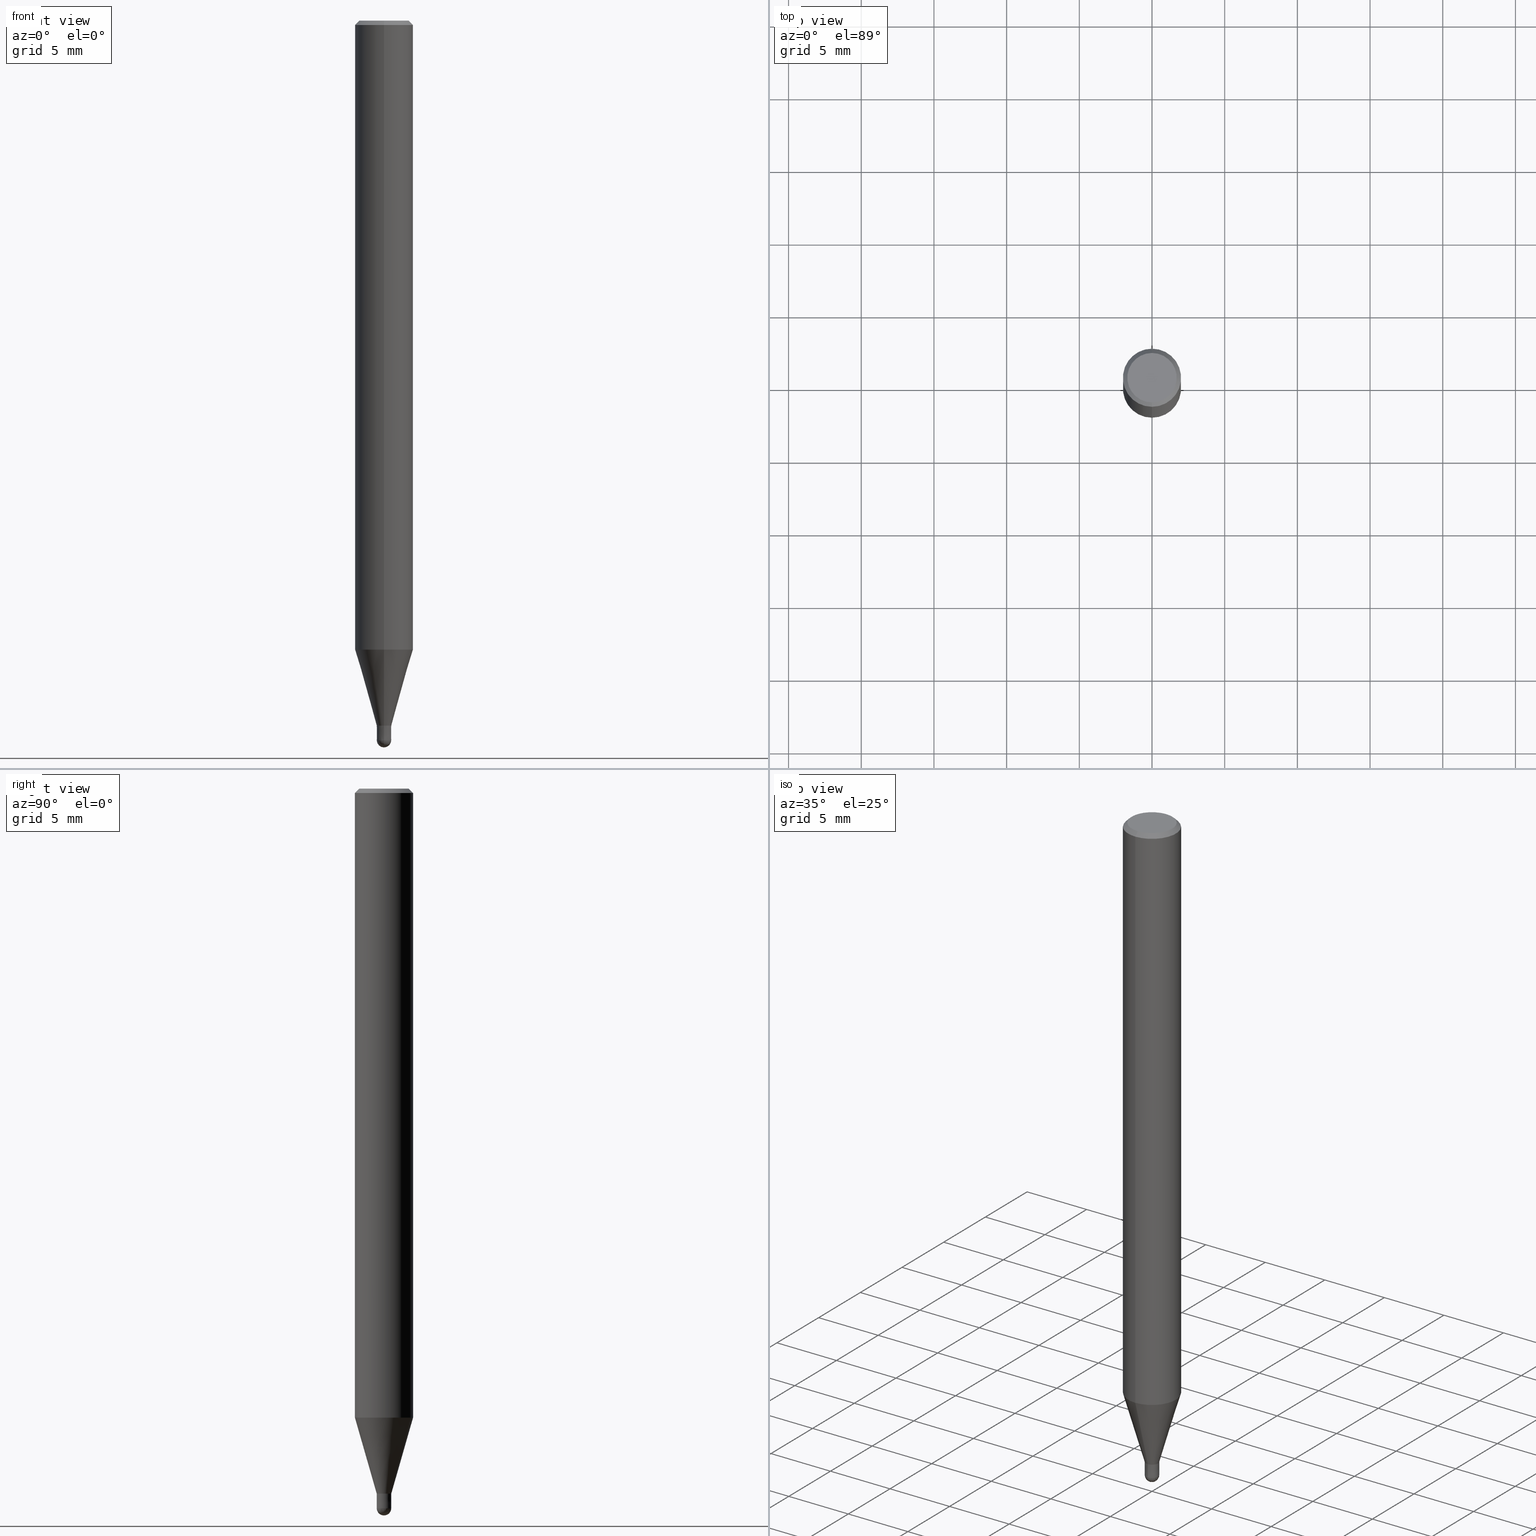
[diagram: canonical four-view strip — front | top / right | iso, engineering-drawing reading convention]
A machine part, canonical four-view strip (front | top / right | iso — engineering-drawing reading convention). The complete STEP part file that produces these views, byte-faithful:
ISO-10303-21;
HEADER;
FILE_DESCRIPTION(('no description'),'unknown implementation level');
FILE_NAME('CFB3010-0150-Huellk.stp','  ',('CIMSOURCE GmbH'),('CADClick - KiM GmbH - www.kimweb.de'),'unknown preprocess','ACIS','unknown authorization');
FILE_SCHEMA(('automotive_design'));
ENDSEC;
DATA;
#1=MECHANICAL_DESIGN_GEOMETRIC_PRESENTATION_REPRESENTATION(' ',(#14,#15,#16,#17,#18,#19,#20,#21,#22,#23,#24,#25,#26,#27,#28,#29,#30,#31,#32,#33,#34,#35,#36,#37,#38,#39,#40,#41,#42,#43,#44,#45,#46,#47,#48,#49,#50,#51,#52,#53,#54,#55,#56,#57,#58,#59,#60,#61,#62,#63,#64,#65,#66),#10);
#2=PRODUCT_DEFINITION_CONTEXT('',#67,'design');
#3=APPLICATION_PROTOCOL_DEFINITION('INTERNATIONAL STANDARD','automotive_design',1994,#67);
#4=PRODUCT_CATEGORY_RELATIONSHIP('NONE','NONE',#68,#69);
#5=SHAPE_DEFINITION_REPRESENTATION(#70,#71);
#6=PRODUCT_DEFINITION_CONTEXT('',#72,'design');
#7=APPLICATION_PROTOCOL_DEFINITION('INTERNATIONAL STANDARD','automotive_design',1994,#72);
#8=PRODUCT_CATEGORY_RELATIONSHIP('NONE','NONE',#73,#74);
#9=SHAPE_DEFINITION_REPRESENTATION(#75,#76);
#10= (GEOMETRIC_REPRESENTATION_CONTEXT(3)GLOBAL_UNCERTAINTY_ASSIGNED_CONTEXT((#79))GLOBAL_UNIT_ASSIGNED_CONTEXT((#81,#82,#83))REPRESENTATION_CONTEXT('NONE','WORKSPACE'));
#14=STYLED_ITEM('',(#85),#86);
#15=STYLED_ITEM('',(#87),#88);
#16=STYLED_ITEM('',(#89),#90);
#17=STYLED_ITEM('',(#91),#92);
#18=STYLED_ITEM('',(#93),#94);
#19=STYLED_ITEM('',(#95),#96);
#20=STYLED_ITEM('',(#97),#98);
#21=STYLED_ITEM('',(#99),#100);
#22=STYLED_ITEM('',(#101),#102);
#23=STYLED_ITEM('',(#103),#104);
#24=STYLED_ITEM('',(#105),#106);
#25=STYLED_ITEM('',(#107),#108);
#26=STYLED_ITEM('',(#109),#110);
#27=STYLED_ITEM('',(#111),#112);
#28=STYLED_ITEM('',(#113),#114);
#29=STYLED_ITEM('',(#115),#116);
#30=STYLED_ITEM('',(#117),#118);
#31=STYLED_ITEM('',(#119),#120);
#32=STYLED_ITEM('',(#121),#122);
#33=STYLED_ITEM('',(#123),#124);
#34=STYLED_ITEM('',(#125),#126);
#35=STYLED_ITEM('',(#127),#128);
#36=STYLED_ITEM('',(#129),#130);
#37=STYLED_ITEM('',(#131),#132);
#38=STYLED_ITEM('',(#133),#134);
#39=STYLED_ITEM('',(#135),#136);
#40=STYLED_ITEM('',(#137),#138);
#41=STYLED_ITEM('',(#139),#140);
#42=STYLED_ITEM('',(#141),#142);
#43=STYLED_ITEM('',(#143),#144);
#44=STYLED_ITEM('',(#145),#146);
#45=STYLED_ITEM('',(#147),#148);
#46=STYLED_ITEM('',(#149),#150);
#47=STYLED_ITEM('',(#151),#152);
#48=STYLED_ITEM('',(#153),#154);
#49=STYLED_ITEM('',(#155),#156);
#50=STYLED_ITEM('',(#157),#158);
#51=STYLED_ITEM('',(#159),#160);
#52=STYLED_ITEM('',(#161),#162);
#53=STYLED_ITEM('',(#163),#164);
#54=STYLED_ITEM('',(#165),#166);
#55=STYLED_ITEM('',(#167),#168);
#56=STYLED_ITEM('',(#169),#170);
#57=STYLED_ITEM('',(#171),#172);
#58=STYLED_ITEM('',(#173),#174);
#59=STYLED_ITEM('',(#175),#176);
#60=STYLED_ITEM('',(#177),#178);
#61=STYLED_ITEM('',(#179),#180);
#62=STYLED_ITEM('',(#181),#182);
#63=STYLED_ITEM('',(#183),#184);
#64=STYLED_ITEM('',(#185),#186);
#65=STYLED_ITEM('',(#187),#188);
#66=STYLED_ITEM('',(#189),#190);
#67=APPLICATION_CONTEXT(' ');
#68=PRODUCT_CATEGORY('part','NONE');
#69=PRODUCT_RELATED_PRODUCT_CATEGORY('detail',' ',(#191));
#70=PRODUCT_DEFINITION_SHAPE('NONE','NONE',#192);
#71=ADVANCED_BREP_SHAPE_REPRESENTATION('1',(#146,#193),#10);
#72=APPLICATION_CONTEXT(' ');
#73=PRODUCT_CATEGORY('part','NONE');
#74=PRODUCT_RELATED_PRODUCT_CATEGORY('detail',' ',(#194));
#75=PRODUCT_DEFINITION_SHAPE('NONE','NONE',#195);
#76=ADVANCED_BREP_SHAPE_REPRESENTATION('2',(#142,#196),#10);
#79=UNCERTAINTY_MEASURE_WITH_UNIT(LENGTH_MEASURE(1.0E-006),#81,'','');
#81= (CONVERSION_BASED_UNIT('MILLIMETRE',#199)LENGTH_UNIT()NAMED_UNIT(#202));
#82= (NAMED_UNIT(#204)PLANE_ANGLE_UNIT()SI_UNIT($,.RADIAN.));
#83= (NAMED_UNIT(#204)SOLID_ANGLE_UNIT()SI_UNIT($,.STERADIAN.));
#85=PRESENTATION_STYLE_ASSIGNMENT((#210));
#86=VERTEX_POINT('',#211);
#87=PRESENTATION_STYLE_ASSIGNMENT((#212));
#88=VERTEX_POINT('',#213);
#89=PRESENTATION_STYLE_ASSIGNMENT((#214));
#90=EDGE_CURVE('',#128,#176,#215,.T.);
#91=PRESENTATION_STYLE_ASSIGNMENT((#216));
#92=EDGE_CURVE('',#116,#138,#217,.T.);
#93=PRESENTATION_STYLE_ASSIGNMENT((#218));
#94=VERTEX_POINT('',#219);
#95=PRESENTATION_STYLE_ASSIGNMENT((#220));
#96=EDGE_CURVE('',#88,#130,#221,.T.);
#97=PRESENTATION_STYLE_ASSIGNMENT((#222));
#98=ADVANCED_FACE('',(#223),#224,.T.);
#99=PRESENTATION_STYLE_ASSIGNMENT((#225));
#100=ADVANCED_FACE('',(#226),#227,.T.);
#101=PRESENTATION_STYLE_ASSIGNMENT((#228));
#102=EDGE_CURVE('',#116,#86,#229,.T.);
#103=PRESENTATION_STYLE_ASSIGNMENT((#230));
#104=EDGE_CURVE('',#138,#116,#231,.T.);
#105=PRESENTATION_STYLE_ASSIGNMENT((#232));
#106=EDGE_CURVE('',#176,#94,#233,.T.);
#107=PRESENTATION_STYLE_ASSIGNMENT((#234));
#108=ADVANCED_FACE('',(#235),#236,.T.);
#109=PRESENTATION_STYLE_ASSIGNMENT((#237));
#110=EDGE_CURVE('',#88,#126,#238,.T.);
#111=PRESENTATION_STYLE_ASSIGNMENT((#239));
#112=EDGE_CURVE('',#176,#128,#240,.T.);
#113=PRESENTATION_STYLE_ASSIGNMENT((#241));
#114=EDGE_CURVE('',#144,#166,#242,.T.);
#115=PRESENTATION_STYLE_ASSIGNMENT((#243));
#116=VERTEX_POINT('',#244);
#117=PRESENTATION_STYLE_ASSIGNMENT((#245));
#118=EDGE_CURVE('',#130,#88,#246,.T.);
#119=PRESENTATION_STYLE_ASSIGNMENT((#247));
#120=EDGE_CURVE('',#166,#144,#248,.T.);
#121=PRESENTATION_STYLE_ASSIGNMENT((#249));
#122=EDGE_CURVE('',#134,#94,#250,.T.);
#123=PRESENTATION_STYLE_ASSIGNMENT((#251));
#124=ADVANCED_FACE('',(#252),#253,.T.);
#125=PRESENTATION_STYLE_ASSIGNMENT((#254));
#126=VERTEX_POINT('',#255);
#127=PRESENTATION_STYLE_ASSIGNMENT((#256));
#128=VERTEX_POINT('',#257);
#129=PRESENTATION_STYLE_ASSIGNMENT((#258));
#130=VERTEX_POINT('',#259);
#131=PRESENTATION_STYLE_ASSIGNMENT((#260));
#132=EDGE_CURVE('',#184,#130,#261,.T.);
#133=PRESENTATION_STYLE_ASSIGNMENT((#262));
#134=VERTEX_POINT('',#263);
#135=PRESENTATION_STYLE_ASSIGNMENT((#264));
#136=EDGE_CURVE('',#134,#128,#265,.T.);
#137=PRESENTATION_STYLE_ASSIGNMENT((#266));
#138=VERTEX_POINT('',#267);
#139=PRESENTATION_STYLE_ASSIGNMENT((#268));
#140=EDGE_CURVE('',#166,#190,#269,.T.);
#141=PRESENTATION_STYLE_ASSIGNMENT((#270));
#142=MANIFOLD_SOLID_BREP('2',#271);
#143=PRESENTATION_STYLE_ASSIGNMENT((#272));
#144=VERTEX_POINT('',#273);
#145=PRESENTATION_STYLE_ASSIGNMENT((#274));
#146=MANIFOLD_SOLID_BREP('1',#275);
#147=PRESENTATION_STYLE_ASSIGNMENT((#276));
#148=ADVANCED_FACE('',(#277),#278,.T.);
#149=PRESENTATION_STYLE_ASSIGNMENT((#279));
#150=ADVANCED_FACE('',(#280),#281,.T.);
#151=PRESENTATION_STYLE_ASSIGNMENT((#282));
#152=EDGE_CURVE('',#190,#138,#283,.T.);
#153=PRESENTATION_STYLE_ASSIGNMENT((#284));
#154=ADVANCED_FACE('',(#285),#286,.T.);
#155=PRESENTATION_STYLE_ASSIGNMENT((#287));
#156=ADVANCED_FACE('',(#288,#289),#290,.T.);
#157=PRESENTATION_STYLE_ASSIGNMENT((#291));
#158=ADVANCED_FACE('',(#292),#293,.T.);
#159=PRESENTATION_STYLE_ASSIGNMENT((#294));
#160=EDGE_CURVE('',#126,#184,#295,.T.);
#161=PRESENTATION_STYLE_ASSIGNMENT((#296));
#162=EDGE_CURVE('',#94,#134,#297,.T.);
#163=PRESENTATION_STYLE_ASSIGNMENT((#298));
#164=EDGE_CURVE('',#190,#86,#299,.T.);
#165=PRESENTATION_STYLE_ASSIGNMENT((#300));
#166=VERTEX_POINT('',#301);
#167=PRESENTATION_STYLE_ASSIGNMENT((#302));
#168=ADVANCED_FACE('',(#303),#304,.T.);
#169=PRESENTATION_STYLE_ASSIGNMENT((#305));
#170=EDGE_CURVE('',#86,#190,#306,.T.);
#171=PRESENTATION_STYLE_ASSIGNMENT((#307));
#172=ADVANCED_FACE('',(#308),#309,.T.);
#173=PRESENTATION_STYLE_ASSIGNMENT((#310));
#174=ADVANCED_FACE('',(#311),#312,.T.);
#175=PRESENTATION_STYLE_ASSIGNMENT((#313));
#176=VERTEX_POINT('',#314);
#177=PRESENTATION_STYLE_ASSIGNMENT((#315));
#178=ADVANCED_FACE('',(#316),#317,.T.);
#179=PRESENTATION_STYLE_ASSIGNMENT((#318));
#180=EDGE_CURVE('',#134,#94,#319,.T.);
#181=PRESENTATION_STYLE_ASSIGNMENT((#320));
#182=ADVANCED_FACE('',(#321),#322,.T.);
#183=PRESENTATION_STYLE_ASSIGNMENT((#323));
#184=VERTEX_POINT('',#324);
#185=PRESENTATION_STYLE_ASSIGNMENT((#325));
#186=EDGE_CURVE('',#184,#126,#326,.T.);
#187=PRESENTATION_STYLE_ASSIGNMENT((#327));
#188=EDGE_CURVE('',#86,#144,#328,.T.);
#189=PRESENTATION_STYLE_ASSIGNMENT((#329));
#190=VERTEX_POINT('',#330);
#191=PRODUCT('1','1','PART-1-DESC',(#331));
#192=PRODUCT_DEFINITION('NONE','NONE',#332,#2);
#193=AXIS2_PLACEMENT_3D('',#333,#334,#335);
#194=PRODUCT('2','2','PART-2-DESC',(#336));
#195=PRODUCT_DEFINITION('NONE','NONE',#337,#6);
#196=AXIS2_PLACEMENT_3D('',#338,#339,#340);
#199=LENGTH_MEASURE_WITH_UNIT(LENGTH_MEASURE(1.0),#341);
#202=DIMENSIONAL_EXPONENTS(1.0,0.0,0.0,0.0,0.0,0.0,0.0);
#204=DIMENSIONAL_EXPONENTS(0.0,0.0,0.0,0.0,0.0,0.0,0.0);
#210=POINT_STYLE(' ',#342,POSITIVE_LENGTH_MEASURE(1.0E-006),#343);
#211=CARTESIAN_POINT('',(2.44921270764475E-016,-2.0,-0.299999999999997));
#212=POINT_STYLE(' ',#344,POSITIVE_LENGTH_MEASURE(1.0E-006),#345);
#213=CARTESIAN_POINT('',(0.0,1.99995,-43.269));
#214=CURVE_STYLE('',#346,POSITIVE_LENGTH_MEASURE(1.0E-006),#347);
#215=CIRCLE('',#348,0.4999);
#216=CURVE_STYLE('',#349,POSITIVE_LENGTH_MEASURE(1.0E-006),#350);
#217=CIRCLE('',#351,2.0);
#218=POINT_STYLE(' ',#352,POSITIVE_LENGTH_MEASURE(1.0E-006),#353);
#219=CARTESIAN_POINT('',(0.0,0.5,-49.5));
#220=CURVE_STYLE('',#354,POSITIVE_LENGTH_MEASURE(1.0E-006),#355);
#221=CIRCLE('',#356,1.99995);
#222=SURFACE_STYLE_USAGE(.BOTH.,#357);
#223=FACE_OUTER_BOUND('',#358,.T.);
#224=CYLINDRICAL_SURFACE('',#359,2.0);
#225=SURFACE_STYLE_USAGE(.BOTH.,#360);
#226=FACE_OUTER_BOUND('',#361,.T.);
#227=CONICAL_SURFACE('',#362,1.24995,0.279258842899557);
#228=CURVE_STYLE('',#363,POSITIVE_LENGTH_MEASURE(1.0E-006),#364);
#229=LINE('',#365,#366);
#230=CURVE_STYLE('',#367,POSITIVE_LENGTH_MEASURE(1.0E-006),#368);
#231=CIRCLE('',#369,2.0);
#232=CURVE_STYLE('',#370,POSITIVE_LENGTH_MEASURE(1.0E-006),#371);
#233=LINE('',#372,#373);
#234=SURFACE_STYLE_USAGE(.BOTH.,#374);
#235=FACE_OUTER_BOUND('',#375,.T.);
#236=CONICAL_SURFACE('',#376,1.85,0.785398163397453);
#237=CURVE_STYLE('',#377,POSITIVE_LENGTH_MEASURE(1.0E-006),#378);
#238=LINE('',#379,#380);
#239=CURVE_STYLE('',#381,POSITIVE_LENGTH_MEASURE(1.0E-006),#382);
#240=CIRCLE('',#383,0.4999);
#241=CURVE_STYLE('',#384,POSITIVE_LENGTH_MEASURE(1.0E-006),#385);
#242=CIRCLE('',#386,1.7);
#243=POINT_STYLE(' ',#387,POSITIVE_LENGTH_MEASURE(1.0E-006),#388);
#244=CARTESIAN_POINT('',(2.44921270764475E-016,-2.0,-43.269));
#245=CURVE_STYLE('',#389,POSITIVE_LENGTH_MEASURE(1.0E-006),#390);
#246=CIRCLE('',#391,1.99995);
#247=CURVE_STYLE('',#392,POSITIVE_LENGTH_MEASURE(1.0E-006),#393);
#248=CIRCLE('',#394,1.7);
#249=CURVE_STYLE('',#395,POSITIVE_LENGTH_MEASURE(1.0E-006),#396);
#250=CIRCLE('',#397,0.500000000000001);
#251=SURFACE_STYLE_USAGE(.BOTH.,#398);
#252=FACE_OUTER_BOUND('',#399,.T.);
#253=CONICAL_SURFACE('',#400,1.24995,0.279258842899557);
#254=POINT_STYLE(' ',#401,POSITIVE_LENGTH_MEASURE(1.0E-006),#402);
#255=CARTESIAN_POINT('',(0.0,0.49995,-48.5));
#256=POINT_STYLE(' ',#403,POSITIVE_LENGTH_MEASURE(1.0E-006),#404);
#257=CARTESIAN_POINT('',(6.12180716275806E-017,-0.4999,-48.5));
#258=POINT_STYLE(' ',#405,POSITIVE_LENGTH_MEASURE(1.0E-006),#406);
#259=CARTESIAN_POINT('',(2.44915147732706E-016,-1.99995,-43.269));
#260=CURVE_STYLE('',#407,POSITIVE_LENGTH_MEASURE(1.0E-006),#408);
#261=LINE('',#409,#410);
#262=POINT_STYLE(' ',#411,POSITIVE_LENGTH_MEASURE(1.0E-006),#412);
#263=CARTESIAN_POINT('',(6.12303176911189E-017,-0.5,-49.5));
#264=CURVE_STYLE('',#413,POSITIVE_LENGTH_MEASURE(1.0E-006),#414);
#265=LINE('',#415,#416);
#266=POINT_STYLE(' ',#417,POSITIVE_LENGTH_MEASURE(1.0E-006),#418);
#267=CARTESIAN_POINT('',(0.0,2.0,-43.269));
#268=CURVE_STYLE('',#419,POSITIVE_LENGTH_MEASURE(1.0E-006),#420);
#269=LINE('',#421,#422);
#270=SURFACE_STYLE_USAGE(.BOTH.,#423);
#271=CLOSED_SHELL('',(#168,#178,#154,#172,#174));
#272=POINT_STYLE(' ',#424,POSITIVE_LENGTH_MEASURE(1.0E-006),#425);
#273=CARTESIAN_POINT('',(2.08183080149804E-016,-1.7,0.0));
#274=SURFACE_STYLE_USAGE(.BOTH.,#426);
#275=CLOSED_SHELL('',(#124,#148,#182,#156,#158,#108,#98,#100,#150));
#276=SURFACE_STYLE_USAGE(.BOTH.,#427);
#277=FACE_OUTER_BOUND('',#428,.T.);
#278=CYLINDRICAL_SURFACE('',#429,2.0);
#279=SURFACE_STYLE_USAGE(.BOTH.,#430);
#280=FACE_OUTER_BOUND('',#431,.T.);
#281=PLANE('',#432);
#282=CURVE_STYLE('',#433,POSITIVE_LENGTH_MEASURE(1.0E-006),#434);
#283=LINE('',#435,#436);
#284=SURFACE_STYLE_USAGE(.BOTH.,#437);
#285=FACE_OUTER_BOUND('',#438,.T.);
#286=PLANE('',#439);
#287=SURFACE_STYLE_USAGE(.BOTH.,#440);
#288=FACE_OUTER_BOUND('',#441,.T.);
#289=FACE_BOUND('',#442,.T.);
#290=PLANE('',#443);
#291=SURFACE_STYLE_USAGE(.BOTH.,#444);
#292=FACE_OUTER_BOUND('',#445,.T.);
#293=PLANE('',#446);
#294=CURVE_STYLE('',#447,POSITIVE_LENGTH_MEASURE(1.0E-006),#448);
#295=CIRCLE('',#449,0.49995);
#296=CURVE_STYLE('',#450,POSITIVE_LENGTH_MEASURE(1.0E-006),#451);
#297=CIRCLE('',#452,0.5);
#298=CURVE_STYLE('',#453,POSITIVE_LENGTH_MEASURE(1.0E-006),#454);
#299=CIRCLE('',#455,2.0);
#300=POINT_STYLE(' ',#456,POSITIVE_LENGTH_MEASURE(1.0E-006),#457);
#301=CARTESIAN_POINT('',(0.0,1.7,0.0));
#302=SURFACE_STYLE_USAGE(.BOTH.,#458);
#303=FACE_OUTER_BOUND('',#459,.T.);
#304=SPHERICAL_SURFACE('',#460,0.500000000000001);
#305=CURVE_STYLE('',#461,POSITIVE_LENGTH_MEASURE(1.0E-006),#462);
#306=CIRCLE('',#463,2.0);
#307=SURFACE_STYLE_USAGE(.BOTH.,#464);
#308=FACE_OUTER_BOUND('',#465,.T.);
#309=CONICAL_SURFACE('',#466,0.49995,9.99999996666557E-005);
#310=SURFACE_STYLE_USAGE(.BOTH.,#467);
#311=FACE_OUTER_BOUND('',#468,.T.);
#312=SPHERICAL_SURFACE('',#469,0.500000000000001);
#313=POINT_STYLE(' ',#470,POSITIVE_LENGTH_MEASURE(1.0E-006),#471);
#314=CARTESIAN_POINT('',(0.0,0.4999,-48.5));
#315=SURFACE_STYLE_USAGE(.BOTH.,#472);
#316=FACE_OUTER_BOUND('',#473,.T.);
#317=CONICAL_SURFACE('',#474,0.49995,9.99999996666557E-005);
#318=CURVE_STYLE('',#475,POSITIVE_LENGTH_MEASURE(1.0E-006),#476);
#319=CIRCLE('',#477,0.5);
#320=SURFACE_STYLE_USAGE(.BOTH.,#478);
#321=FACE_OUTER_BOUND('',#479,.T.);
#322=CONICAL_SURFACE('',#480,1.85,0.785398163397453);
#323=POINT_STYLE(' ',#481,POSITIVE_LENGTH_MEASURE(1.0E-006),#482);
#324=CARTESIAN_POINT('',(6.12241946593498E-017,-0.49995,-48.5));
#325=CURVE_STYLE('',#483,POSITIVE_LENGTH_MEASURE(1.0E-006),#484);
#326=CIRCLE('',#485,0.49995);
#327=CURVE_STYLE('',#486,POSITIVE_LENGTH_MEASURE(1.0E-006),#487);
#328=LINE('',#488,#489);
#329=POINT_STYLE(' ',#490,POSITIVE_LENGTH_MEASURE(1.0E-006),#491);
#330=CARTESIAN_POINT('',(0.0,2.0,-0.299999999999997));
#331=PRODUCT_CONTEXT('',#67,'mechanical');
#332=PRODUCT_DEFINITION_FORMATION_WITH_SPECIFIED_SOURCE(' ','NONE',#191,.NOT_KNOWN.);
#333=CARTESIAN_POINT('',(0.0,0.0,0.0));
#334=DIRECTION('',(0.0,0.0,1.0));
#335=DIRECTION('',(1.0,0.0,0.0));
#336=PRODUCT_CONTEXT('',#72,'mechanical');
#337=PRODUCT_DEFINITION_FORMATION_WITH_SPECIFIED_SOURCE(' ','NONE',#194,.NOT_KNOWN.);
#338=CARTESIAN_POINT('',(0.0,0.0,0.0));
#339=DIRECTION('',(0.0,0.0,1.0));
#340=DIRECTION('',(1.0,0.0,0.0));
#341= (NAMED_UNIT(#202)LENGTH_UNIT()SI_UNIT(.MILLI.,.METRE.));
#342=PRE_DEFINED_MARKER('');
#343=COLOUR_RGB('',0.498039215803146,0.498039215803146,0.498039215803146);
#344=PRE_DEFINED_MARKER('');
#345=COLOUR_RGB('',0.498039215803146,0.498039215803146,0.498039215803146);
#346=DRAUGHTING_PRE_DEFINED_CURVE_FONT('continuous');
#347=COLOUR_RGB('',0.800000011920929,0.800000011920929,0.800000011920929);
#348=AXIS2_PLACEMENT_3D('',#493,#494,#495);
#349=DRAUGHTING_PRE_DEFINED_CURVE_FONT('continuous');
#350=COLOUR_RGB('',0.498039215803146,0.498039215803146,0.498039215803146);
#351=AXIS2_PLACEMENT_3D('',#496,#497,#498);
#352=PRE_DEFINED_MARKER('');
#353=COLOUR_RGB('',0.800000011920929,0.800000011920929,0.800000011920929);
#354=DRAUGHTING_PRE_DEFINED_CURVE_FONT('continuous');
#355=COLOUR_RGB('',0.498039215803146,0.498039215803146,0.498039215803146);
#356=AXIS2_PLACEMENT_3D('',#499,#500,#501);
#357=SURFACE_SIDE_STYLE('',(#502));
#358=EDGE_LOOP('',(#503,#504,#505,#506));
#359=AXIS2_PLACEMENT_3D('',#507,#508,#509);
#360=SURFACE_SIDE_STYLE('',(#510));
#361=EDGE_LOOP('',(#511,#512,#513,#514));
#362=AXIS2_PLACEMENT_3D('',#515,#516,#517);
#363=DRAUGHTING_PRE_DEFINED_CURVE_FONT('continuous');
#364=COLOUR_RGB('',0.498039215803146,0.498039215803146,0.498039215803146);
#365=CARTESIAN_POINT('',(2.44921270764475E-016,-2.0,-21.7845));
#366=VECTOR('',#518,1.0);
#367=DRAUGHTING_PRE_DEFINED_CURVE_FONT('continuous');
#368=COLOUR_RGB('',0.498039215803146,0.498039215803146,0.498039215803146);
#369=AXIS2_PLACEMENT_3D('',#519,#520,#521);
#370=DRAUGHTING_PRE_DEFINED_CURVE_FONT('continuous');
#371=COLOUR_RGB('',0.800000011920929,0.800000011920929,0.800000011920929);
#372=CARTESIAN_POINT('',(-6.12241946593498E-017,0.49995,-49.0));
#373=VECTOR('',#522,1.0);
#374=SURFACE_SIDE_STYLE('',(#523));
#375=EDGE_LOOP('',(#524,#525,#526,#527));
#376=AXIS2_PLACEMENT_3D('',#528,#529,#530);
#377=DRAUGHTING_PRE_DEFINED_CURVE_FONT('continuous');
#378=COLOUR_RGB('',0.498039215803146,0.498039215803146,0.498039215803146);
#379=CARTESIAN_POINT('',(-1.53069671196028E-016,1.24995,-45.8845));
#380=VECTOR('',#531,1.0);
#381=DRAUGHTING_PRE_DEFINED_CURVE_FONT('continuous');
#382=COLOUR_RGB('',0.800000011920929,0.800000011920929,0.800000011920929);
#383=AXIS2_PLACEMENT_3D('',#532,#533,#534);
#384=DRAUGHTING_PRE_DEFINED_CURVE_FONT('continuous');
#385=COLOUR_RGB('',0.498039215803146,0.498039215803146,0.498039215803146);
#386=AXIS2_PLACEMENT_3D('',#535,#536,#537);
#387=PRE_DEFINED_MARKER('');
#388=COLOUR_RGB('',0.498039215803146,0.498039215803146,0.498039215803146);
#389=DRAUGHTING_PRE_DEFINED_CURVE_FONT('continuous');
#390=COLOUR_RGB('',0.498039215803146,0.498039215803146,0.498039215803146);
#391=AXIS2_PLACEMENT_3D('',#538,#539,#540);
#392=DRAUGHTING_PRE_DEFINED_CURVE_FONT('continuous');
#393=COLOUR_RGB('',0.498039215803146,0.498039215803146,0.498039215803146);
#394=AXIS2_PLACEMENT_3D('',#541,#542,#543);
#395=DRAUGHTING_PRE_DEFINED_CURVE_FONT('continuous');
#396=COLOUR_RGB('',0.800000011920929,0.800000011920929,0.800000011920929);
#397=AXIS2_PLACEMENT_3D('',#544,#545,#546);
#398=SURFACE_SIDE_STYLE('',(#547));
#399=EDGE_LOOP('',(#548,#549,#550,#551));
#400=AXIS2_PLACEMENT_3D('',#552,#553,#554);
#401=PRE_DEFINED_MARKER('');
#402=COLOUR_RGB('',0.498039215803146,0.498039215803146,0.498039215803146);
#403=PRE_DEFINED_MARKER('');
#404=COLOUR_RGB('',0.800000011920929,0.800000011920929,0.800000011920929);
#405=PRE_DEFINED_MARKER('');
#406=COLOUR_RGB('',0.498039215803146,0.498039215803146,0.498039215803146);
#407=DRAUGHTING_PRE_DEFINED_CURVE_FONT('continuous');
#408=COLOUR_RGB('',0.498039215803146,0.498039215803146,0.498039215803146);
#409=CARTESIAN_POINT('',(1.53069671196028E-016,-1.24995,-45.8845));
#410=VECTOR('',#555,1.0);
#411=PRE_DEFINED_MARKER('');
#412=COLOUR_RGB('',0.800000011920929,0.800000011920929,0.800000011920929);
#413=DRAUGHTING_PRE_DEFINED_CURVE_FONT('continuous');
#414=COLOUR_RGB('',0.800000011920929,0.800000011920929,0.800000011920929);
#415=CARTESIAN_POINT('',(6.12241946593498E-017,-0.49995,-49.0));
#416=VECTOR('',#556,1.0);
#417=PRE_DEFINED_MARKER('');
#418=COLOUR_RGB('',0.498039215803146,0.498039215803146,0.498039215803146);
#419=DRAUGHTING_PRE_DEFINED_CURVE_FONT('continuous');
#420=COLOUR_RGB('',0.498039215803146,0.498039215803146,0.498039215803146);
#421=CARTESIAN_POINT('',(-2.2655217545714E-016,1.85,-0.149999999999999));
#422=VECTOR('',#557,1.0);
#423=SURFACE_SIDE_STYLE('',(#558));
#424=PRE_DEFINED_MARKER('');
#425=COLOUR_RGB('',0.498039215803146,0.498039215803146,0.498039215803146);
#426=SURFACE_SIDE_STYLE('',(#559));
#427=SURFACE_SIDE_STYLE('',(#560));
#428=EDGE_LOOP('',(#561,#562,#563,#564));
#429=AXIS2_PLACEMENT_3D('',#565,#566,#567);
#430=SURFACE_SIDE_STYLE('',(#568));
#431=EDGE_LOOP('',(#569,#570));
#432=AXIS2_PLACEMENT_3D('',#571,#572,#573);
#433=DRAUGHTING_PRE_DEFINED_CURVE_FONT('continuous');
#434=COLOUR_RGB('',0.498039215803146,0.498039215803146,0.498039215803146);
#435=CARTESIAN_POINT('',(-2.44921270764475E-016,2.0,-21.7845));
#436=VECTOR('',#574,1.0);
#437=SURFACE_SIDE_STYLE('',(#575));
#438=EDGE_LOOP('',(#576,#577));
#439=AXIS2_PLACEMENT_3D('',#578,#579,#580);
#440=SURFACE_SIDE_STYLE('',(#581));
#441=EDGE_LOOP('',(#582,#583));
#442=EDGE_LOOP('',(#584,#585));
#443=AXIS2_PLACEMENT_3D('',#586,#587,#588);
#444=SURFACE_SIDE_STYLE('',(#589));
#445=EDGE_LOOP('',(#590,#591));
#446=AXIS2_PLACEMENT_3D('',#592,#593,#594);
#447=DRAUGHTING_PRE_DEFINED_CURVE_FONT('continuous');
#448=COLOUR_RGB('',0.498039215803146,0.498039215803146,0.498039215803146);
#449=AXIS2_PLACEMENT_3D('',#595,#596,#597);
#450=DRAUGHTING_PRE_DEFINED_CURVE_FONT('continuous');
#451=COLOUR_RGB('',0.800000011920929,0.800000011920929,0.800000011920929);
#452=AXIS2_PLACEMENT_3D('',#598,#599,#600);
#453=DRAUGHTING_PRE_DEFINED_CURVE_FONT('continuous');
#454=COLOUR_RGB('',0.498039215803146,0.498039215803146,0.498039215803146);
#455=AXIS2_PLACEMENT_3D('',#601,#602,#603);
#456=PRE_DEFINED_MARKER('');
#457=COLOUR_RGB('',0.498039215803146,0.498039215803146,0.498039215803146);
#458=SURFACE_SIDE_STYLE('',(#604));
#459=EDGE_LOOP('',(#605,#606));
#460=AXIS2_PLACEMENT_3D('',#607,#608,#609);
#461=DRAUGHTING_PRE_DEFINED_CURVE_FONT('continuous');
#462=COLOUR_RGB('',0.498039215803146,0.498039215803146,0.498039215803146);
#463=AXIS2_PLACEMENT_3D('',#610,#611,#612);
#464=SURFACE_SIDE_STYLE('',(#613));
#465=EDGE_LOOP('',(#614,#615,#616,#617));
#466=AXIS2_PLACEMENT_3D('',#618,#619,#620);
#467=SURFACE_SIDE_STYLE('',(#621));
#468=EDGE_LOOP('',(#622,#623));
#469=AXIS2_PLACEMENT_3D('',#624,#625,#626);
#470=PRE_DEFINED_MARKER('');
#471=COLOUR_RGB('',0.800000011920929,0.800000011920929,0.800000011920929);
#472=SURFACE_SIDE_STYLE('',(#627));
#473=EDGE_LOOP('',(#628,#629,#630,#631));
#474=AXIS2_PLACEMENT_3D('',#632,#633,#634);
#475=DRAUGHTING_PRE_DEFINED_CURVE_FONT('continuous');
#476=COLOUR_RGB('',0.800000011920929,0.800000011920929,0.800000011920929);
#477=AXIS2_PLACEMENT_3D('',#635,#636,#637);
#478=SURFACE_SIDE_STYLE('',(#638));
#479=EDGE_LOOP('',(#639,#640,#641,#642));
#480=AXIS2_PLACEMENT_3D('',#643,#644,#645);
#481=PRE_DEFINED_MARKER('');
#482=COLOUR_RGB('',0.498039215803146,0.498039215803146,0.498039215803146);
#483=DRAUGHTING_PRE_DEFINED_CURVE_FONT('continuous');
#484=COLOUR_RGB('',0.498039215803146,0.498039215803146,0.498039215803146);
#485=AXIS2_PLACEMENT_3D('',#646,#647,#648);
#486=DRAUGHTING_PRE_DEFINED_CURVE_FONT('continuous');
#487=COLOUR_RGB('',0.498039215803146,0.498039215803146,0.498039215803146);
#488=CARTESIAN_POINT('',(2.2655217545714E-016,-1.85,-0.149999999999999));
#489=VECTOR('',#649,1.0);
#490=PRE_DEFINED_MARKER('');
#491=COLOUR_RGB('',0.498039215803146,0.498039215803146,0.498039215803146);
#493=CARTESIAN_POINT('',(0.0,0.0,-48.5));
#494=DIRECTION('',(0.0,0.0,-1.0));
#495=DIRECTION('',(0.0,1.0,0.0));
#496=CARTESIAN_POINT('',(0.0,0.0,-43.269));
#497=DIRECTION('',(0.0,0.0,-1.0));
#498=DIRECTION('',(0.0,1.0,0.0));
#499=CARTESIAN_POINT('',(0.0,0.0,-43.269));
#500=DIRECTION('',(0.0,0.0,-1.0));
#501=DIRECTION('',(0.0,1.0,0.0));
#502=SURFACE_STYLE_FILL_AREA(#650);
#503=ORIENTED_EDGE('',*,*,#152,.T.);
#504=ORIENTED_EDGE('',*,*,#92,.F.);
#505=ORIENTED_EDGE('',*,*,#102,.T.);
#506=ORIENTED_EDGE('',*,*,#170,.T.);
#507=CARTESIAN_POINT('',(0.0,0.0,-21.7845));
#508=DIRECTION('',(-0.0,-0.0,1.0));
#509=DIRECTION('',(0.0,1.0,0.0));
#510=SURFACE_STYLE_FILL_AREA(#651);
#511=ORIENTED_EDGE('',*,*,#110,.T.);
#512=ORIENTED_EDGE('',*,*,#186,.F.);
#513=ORIENTED_EDGE('',*,*,#132,.T.);
#514=ORIENTED_EDGE('',*,*,#118,.T.);
#515=CARTESIAN_POINT('',(0.0,0.0,-45.8845));
#516=DIRECTION('',(-0.0,-0.0,1.0));
#517=DIRECTION('',(0.0,1.0,0.0));
#518=DIRECTION('',(-0.0,-0.0,1.0));
#519=CARTESIAN_POINT('',(0.0,0.0,-43.269));
#520=DIRECTION('',(0.0,0.0,-1.0));
#521=DIRECTION('',(0.0,1.0,0.0));
#522=DIRECTION('',(-1.22460634769921E-020,9.9999999499989E-005,-0.999999995));
#523=SURFACE_STYLE_FILL_AREA(#652);
#524=ORIENTED_EDGE('',*,*,#140,.T.);
#525=ORIENTED_EDGE('',*,*,#170,.F.);
#526=ORIENTED_EDGE('',*,*,#188,.T.);
#527=ORIENTED_EDGE('',*,*,#114,.T.);
#528=CARTESIAN_POINT('',(0.0,0.0,-0.149999999999999));
#529=DIRECTION('',(0.0,-0.0,-1.0));
#530=DIRECTION('',(0.0,1.0,0.0));
#531=DIRECTION('',(3.37554511665357E-017,-0.275643279664314,-0.961259997282682));
#532=CARTESIAN_POINT('',(0.0,0.0,-48.5));
#533=DIRECTION('',(0.0,0.0,-1.0));
#534=DIRECTION('',(0.0,1.0,0.0));
#535=CARTESIAN_POINT('',(0.0,0.0,0.0));
#536=DIRECTION('',(0.0,0.0,-1.0));
#537=DIRECTION('',(0.0,1.0,0.0));
#538=CARTESIAN_POINT('',(0.0,0.0,-43.269));
#539=DIRECTION('',(0.0,0.0,-1.0));
#540=DIRECTION('',(0.0,1.0,0.0));
#541=CARTESIAN_POINT('',(0.0,0.0,0.0));
#542=DIRECTION('',(0.0,0.0,-1.0));
#543=DIRECTION('',(0.0,1.0,0.0));
#544=CARTESIAN_POINT('',(0.0,0.0,-49.5));
#545=DIRECTION('',(1.0,0.0,1.22460635382238E-016));
#546=DIRECTION('',(-1.22460635382238E-016,0.0,1.0));
#547=SURFACE_STYLE_FILL_AREA(#653);
#548=ORIENTED_EDGE('',*,*,#110,.F.);
#549=ORIENTED_EDGE('',*,*,#96,.T.);
#550=ORIENTED_EDGE('',*,*,#132,.F.);
#551=ORIENTED_EDGE('',*,*,#160,.F.);
#552=CARTESIAN_POINT('',(0.0,0.0,-45.8845));
#553=DIRECTION('',(-0.0,-0.0,1.0));
#554=DIRECTION('',(0.0,1.0,0.0));
#555=DIRECTION('',(3.37554511665357E-017,-0.275643279664314,0.961259997282682));
#556=DIRECTION('',(-1.22460634769921E-020,9.9999999499989E-005,0.999999995));
#557=DIRECTION('',(-8.6592745707194E-017,0.707106781186551,-0.707106781186544));
#558=SURFACE_STYLE_FILL_AREA(#654);
#559=SURFACE_STYLE_FILL_AREA(#655);
#560=SURFACE_STYLE_FILL_AREA(#656);
#561=ORIENTED_EDGE('',*,*,#152,.F.);
#562=ORIENTED_EDGE('',*,*,#164,.T.);
#563=ORIENTED_EDGE('',*,*,#102,.F.);
#564=ORIENTED_EDGE('',*,*,#104,.F.);
#565=CARTESIAN_POINT('',(0.0,0.0,-21.7845));
#566=DIRECTION('',(-0.0,-0.0,1.0));
#567=DIRECTION('',(0.0,1.0,0.0));
#568=SURFACE_STYLE_FILL_AREA(#657);
#569=ORIENTED_EDGE('',*,*,#160,.T.);
#570=ORIENTED_EDGE('',*,*,#186,.T.);
#571=CARTESIAN_POINT('',(0.0,0.249975,-48.5));
#572=DIRECTION('',(0.0,0.0,-1.0));
#573=DIRECTION('',(0.0,1.0,0.0));
#574=DIRECTION('',(0.0,0.0,-1.0));
#575=SURFACE_STYLE_FILL_AREA(#658);
#576=ORIENTED_EDGE('',*,*,#112,.F.);
#577=ORIENTED_EDGE('',*,*,#90,.F.);
#578=CARTESIAN_POINT('',(0.0,0.24995,-48.5));
#579=DIRECTION('',(-0.0,0.0,1.0));
#580=DIRECTION('',(0.0,-1.0,0.0));
#581=SURFACE_STYLE_FILL_AREA(#659);
#582=ORIENTED_EDGE('',*,*,#104,.T.);
#583=ORIENTED_EDGE('',*,*,#92,.T.);
#584=ORIENTED_EDGE('',*,*,#96,.F.);
#585=ORIENTED_EDGE('',*,*,#118,.F.);
#586=CARTESIAN_POINT('',(0.0,1.0,-43.269));
#587=DIRECTION('',(0.0,0.0,-1.0));
#588=DIRECTION('',(0.0,1.0,0.0));
#589=SURFACE_STYLE_FILL_AREA(#660);
#590=ORIENTED_EDGE('',*,*,#120,.F.);
#591=ORIENTED_EDGE('',*,*,#114,.F.);
#592=CARTESIAN_POINT('',(0.0,0.85,0.0));
#593=DIRECTION('',(-0.0,0.0,1.0));
#594=DIRECTION('',(0.0,-1.0,0.0));
#595=CARTESIAN_POINT('',(0.0,0.0,-48.5));
#596=DIRECTION('',(0.0,0.0,-1.0));
#597=DIRECTION('',(0.0,1.0,0.0));
#598=CARTESIAN_POINT('',(0.0,0.0,-49.5));
#599=DIRECTION('',(0.0,0.0,-1.0));
#600=DIRECTION('',(0.0,1.0,0.0));
#601=CARTESIAN_POINT('',(0.0,0.0,-0.299999999999997));
#602=DIRECTION('',(0.0,0.0,-1.0));
#603=DIRECTION('',(0.0,1.0,0.0));
#604=SURFACE_STYLE_FILL_AREA(#661);
#605=ORIENTED_EDGE('',*,*,#122,.F.);
#606=ORIENTED_EDGE('',*,*,#180,.T.);
#607=CARTESIAN_POINT('',(0.0,0.0,-49.5));
#608=DIRECTION('',(0.0,1.0,0.0));
#609=DIRECTION('',(0.0,0.0,-1.0));
#610=CARTESIAN_POINT('',(0.0,0.0,-0.299999999999997));
#611=DIRECTION('',(0.0,0.0,-1.0));
#612=DIRECTION('',(0.0,1.0,0.0));
#613=SURFACE_STYLE_FILL_AREA(#662);
#614=ORIENTED_EDGE('',*,*,#106,.T.);
#615=ORIENTED_EDGE('',*,*,#180,.F.);
#616=ORIENTED_EDGE('',*,*,#136,.T.);
#617=ORIENTED_EDGE('',*,*,#90,.T.);
#618=CARTESIAN_POINT('',(0.0,0.0,-49.0));
#619=DIRECTION('',(0.0,-0.0,-1.0));
#620=DIRECTION('',(0.0,1.0,0.0));
#621=SURFACE_STYLE_FILL_AREA(#663);
#622=ORIENTED_EDGE('',*,*,#122,.T.);
#623=ORIENTED_EDGE('',*,*,#162,.T.);
#624=CARTESIAN_POINT('',(0.0,0.0,-49.5));
#625=DIRECTION('',(0.0,1.0,0.0));
#626=DIRECTION('',(0.0,0.0,-1.0));
#627=SURFACE_STYLE_FILL_AREA(#664);
#628=ORIENTED_EDGE('',*,*,#106,.F.);
#629=ORIENTED_EDGE('',*,*,#112,.T.);
#630=ORIENTED_EDGE('',*,*,#136,.F.);
#631=ORIENTED_EDGE('',*,*,#162,.F.);
#632=CARTESIAN_POINT('',(0.0,0.0,-49.0));
#633=DIRECTION('',(0.0,-0.0,-1.0));
#634=DIRECTION('',(0.0,1.0,0.0));
#635=CARTESIAN_POINT('',(0.0,0.0,-49.5));
#636=DIRECTION('',(0.0,0.0,-1.0));
#637=DIRECTION('',(0.0,1.0,0.0));
#638=SURFACE_STYLE_FILL_AREA(#665);
#639=ORIENTED_EDGE('',*,*,#140,.F.);
#640=ORIENTED_EDGE('',*,*,#120,.T.);
#641=ORIENTED_EDGE('',*,*,#188,.F.);
#642=ORIENTED_EDGE('',*,*,#164,.F.);
#643=CARTESIAN_POINT('',(0.0,0.0,-0.149999999999999));
#644=DIRECTION('',(0.0,-0.0,-1.0));
#645=DIRECTION('',(0.0,1.0,0.0));
#646=CARTESIAN_POINT('',(0.0,0.0,-48.5));
#647=DIRECTION('',(0.0,0.0,-1.0));
#648=DIRECTION('',(0.0,1.0,0.0));
#649=DIRECTION('',(-8.6592745707194E-017,0.707106781186551,0.707106781186544));
#650=FILL_AREA_STYLE('',(#666));
#651=FILL_AREA_STYLE('',(#667));
#652=FILL_AREA_STYLE('',(#668));
#653=FILL_AREA_STYLE('',(#669));
#654=FILL_AREA_STYLE('',(#670));
#655=FILL_AREA_STYLE('',(#671));
#656=FILL_AREA_STYLE('',(#672));
#657=FILL_AREA_STYLE('',(#673));
#658=FILL_AREA_STYLE('',(#674));
#659=FILL_AREA_STYLE('',(#675));
#660=FILL_AREA_STYLE('',(#676));
#661=FILL_AREA_STYLE('',(#677));
#662=FILL_AREA_STYLE('',(#678));
#663=FILL_AREA_STYLE('',(#679));
#664=FILL_AREA_STYLE('',(#680));
#665=FILL_AREA_STYLE('',(#681));
#666=FILL_AREA_STYLE_COLOUR('',#682);
#667=FILL_AREA_STYLE_COLOUR('',#683);
#668=FILL_AREA_STYLE_COLOUR('',#684);
#669=FILL_AREA_STYLE_COLOUR('',#685);
#670=FILL_AREA_STYLE_COLOUR('',#686);
#671=FILL_AREA_STYLE_COLOUR('',#687);
#672=FILL_AREA_STYLE_COLOUR('',#688);
#673=FILL_AREA_STYLE_COLOUR('',#689);
#674=FILL_AREA_STYLE_COLOUR('',#690);
#675=FILL_AREA_STYLE_COLOUR('',#691);
#676=FILL_AREA_STYLE_COLOUR('',#692);
#677=FILL_AREA_STYLE_COLOUR('',#693);
#678=FILL_AREA_STYLE_COLOUR('',#694);
#679=FILL_AREA_STYLE_COLOUR('',#695);
#680=FILL_AREA_STYLE_COLOUR('',#696);
#681=FILL_AREA_STYLE_COLOUR('',#697);
#682=COLOUR_RGB('',0.498039215803146,0.498039215803146,0.498039215803146);
#683=COLOUR_RGB('',0.498039215803146,0.498039215803146,0.498039215803146);
#684=COLOUR_RGB('',0.498039215803146,0.498039215803146,0.498039215803146);
#685=COLOUR_RGB('',0.498039215803146,0.498039215803146,0.498039215803146);
#686=COLOUR_RGB('',0.800000011920929,0.800000011920929,0.800000011920929);
#687=COLOUR_RGB('',0.498039215803146,0.498039215803146,0.498039215803146);
#688=COLOUR_RGB('',0.498039215803146,0.498039215803146,0.498039215803146);
#689=COLOUR_RGB('',0.498039215803146,0.498039215803146,0.498039215803146);
#690=COLOUR_RGB('',0.800000011920929,0.800000011920929,0.800000011920929);
#691=COLOUR_RGB('',0.498039215803146,0.498039215803146,0.498039215803146);
#692=COLOUR_RGB('',0.498039215803146,0.498039215803146,0.498039215803146);
#693=COLOUR_RGB('',0.800000011920929,0.800000011920929,0.800000011920929);
#694=COLOUR_RGB('',0.800000011920929,0.800000011920929,0.800000011920929);
#695=COLOUR_RGB('',0.800000011920929,0.800000011920929,0.800000011920929);
#696=COLOUR_RGB('',0.800000011920929,0.800000011920929,0.800000011920929);
#697=COLOUR_RGB('',0.498039215803146,0.498039215803146,0.498039215803146);
#698=AXIS2_PLACEMENT_3D('PCS',#699,#700,#701);
#699=CARTESIAN_POINT('',(0.0,0.0,0.0));
#700=DIRECTION('',(0.0,0.0,1.0));
#701=DIRECTION('',(1.0,0.0,0.0));
#702=AXIS2_PLACEMENT_3D('CIP',#703,#704,#705);
#703=CARTESIAN_POINT('',(0.0,0.0,-50.0));
#704=DIRECTION('',(0.0,0.0,1.0));
#705=DIRECTION('',(1.0,0.0,0.0));
#706=AXIS2_PLACEMENT_3D('CRP',#707,#708,#709);
#707=CARTESIAN_POINT('',(-0.5,0.0,-50.0));
#708=DIRECTION('',(0.0,0.0,1.0));
#709=DIRECTION('',(1.0,0.0,0.0));
#710=AXIS2_PLACEMENT_3D('MCS',#711,#712,#713);
#711=CARTESIAN_POINT('',(0.0,0.0,-43.269));
#712=DIRECTION('',(0.0,0.0,1.0));
#713=DIRECTION('',(1.0,0.0,0.0));
#714=CONSTRUCTIVE_GEOMETRY_REPRESENTATION_RELATIONSHIP('coordinate systems',$,#71,#715);
#715=CONSTRUCTIVE_GEOMETRY_REPRESENTATION('coordinate systems',(#698,#702,#706,#710),#10);
ENDSEC;
END-ISO-10303-21;
